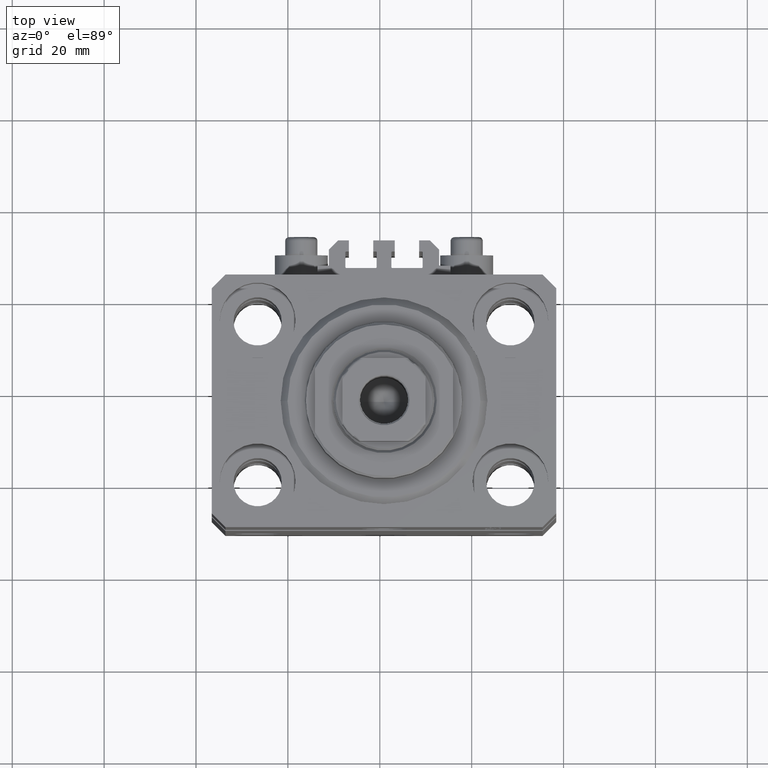
[diagram: clean part render]
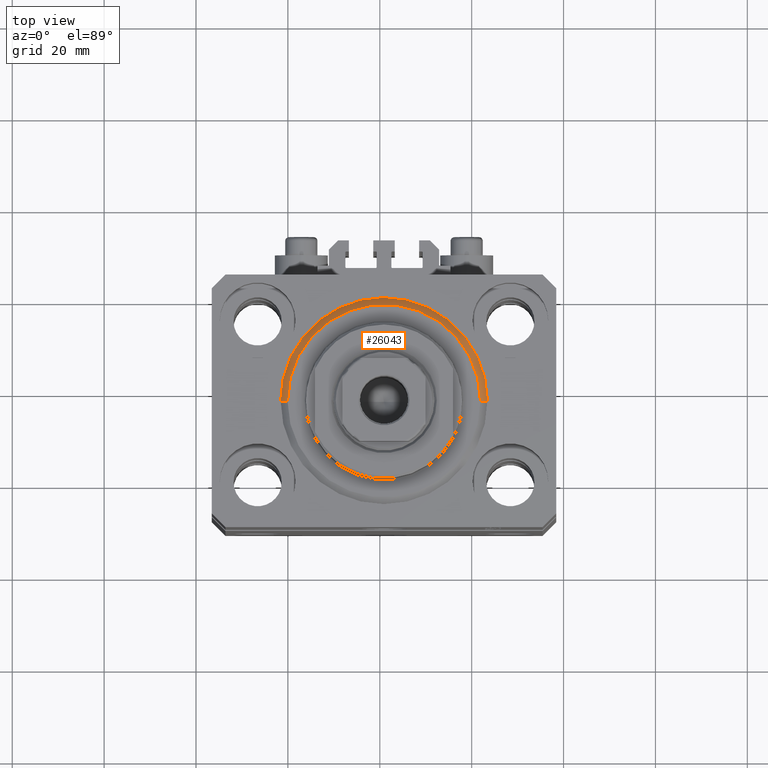
[diagram: same view with one face highlighted and labeled with its STEP entity id]
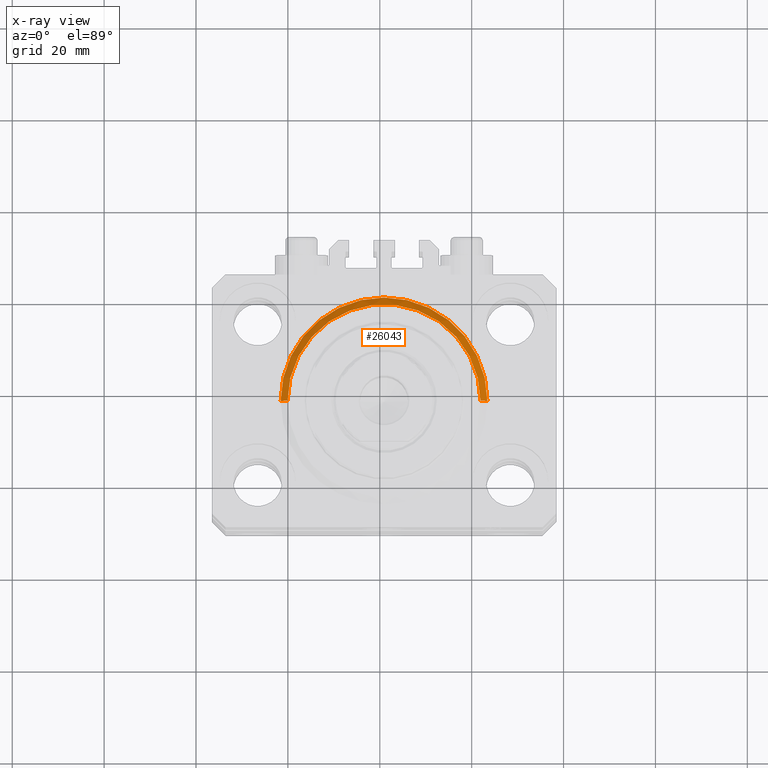
[diagram: x-ray of the same camera — body ghosted, the highlighted face saturated]
A machine part, top view. The second image highlights one B-rep face of the part: STEP entity #26043.
The next image is the same camera in x-ray: the body ghosted, the highlighted face saturated — about 0% of this face is hidden behind the body in this view.
In plain terms, the highlighted conical surface has half-angle 45 deg.
Its self-contained STEP definition (entity closure, byte-faithful):
#377 = DIRECTION ( 'NONE',  ( -0.000000000000000000, -0.000000000000000000, -1.000000000000000000 ) ) ;
#3825 = ORIENTED_EDGE ( 'NONE', *, *, #4888, .T. ) ;
#4888 = EDGE_CURVE ( 'NONE', #25903, #10345, #30527, .T. ) ;
#5650 = LINE ( 'NONE', #45155, #46354 ) ;
#6372 = CARTESIAN_POINT ( 'NONE',  ( -20.99999999999998934, 2.663606788145492628E-15, 0.000000000000000000 ) ) ;
#8212 = VERTEX_POINT ( 'NONE', #17563 ) ;
#10345 = VERTEX_POINT ( 'NONE', #27006 ) ;
#11857 = CARTESIAN_POINT ( 'NONE',  ( 0.000000000000000000, 0.000000000000000000, 0.000000000000000000 ) ) ;
#16315 = CARTESIAN_POINT ( 'NONE',  ( 0.000000000000000000, 0.000000000000000000, 1.500000000000001332 ) ) ;
#16874 = DIRECTION ( 'NONE',  ( -0.7071067811865500152, 8.659560562354963673E-17, 0.7071067811865451302 ) ) ;
#17230 = DIRECTION ( 'NONE',  ( 1.000000000000000000, 0.000000000000000000, 0.000000000000000000 ) ) ;
#17534 = CONICAL_SURFACE ( 'NONE', #47340, 22.50000000000000355, 0.7853981633974517207 ) ;
#17563 = CARTESIAN_POINT ( 'NONE',  ( 22.50000000000000355, 2.755455298081545172E-15, 1.500000000000001332 ) ) ;
#17698 = FACE_OUTER_BOUND ( 'NONE', #39667, .T. ) ;
#20027 = ORIENTED_EDGE ( 'NONE', *, *, #45485, .F. ) ;
#20100 = DIRECTION ( 'NONE',  ( -0.000000000000000000, -0.000000000000000000, 1.000000000000000000 ) ) ;
#21064 = DIRECTION ( 'NONE',  ( 1.000000000000000000, 0.000000000000000000, 0.000000000000000000 ) ) ;
#22409 = CIRCLE ( 'NONE', #36916, 20.99999999999998934 ) ;
#22446 = VECTOR ( 'NONE', #16874, 1000.000000000000114 ) ;
#25356 = CARTESIAN_POINT ( 'NONE',  ( 0.000000000000000000, 0.000000000000000000, 1.500000000000001332 ) ) ;
#25903 = VERTEX_POINT ( 'NONE', #6372 ) ;
#26043 = ADVANCED_FACE ( 'NONE', ( #17698 ), #17534, .T. ) ;
#27006 = CARTESIAN_POINT ( 'NONE',  ( -22.50000000000000355, 0.000000000000000000, 1.500000000000001332 ) ) ;
#30067 = DIRECTION ( 'NONE',  ( 1.000000000000000000, 0.000000000000000000, 0.000000000000000000 ) ) ;
#30527 = LINE ( 'NONE', #41506, #22446 ) ;
#30760 = CIRCLE ( 'NONE', #44530, 22.50000000000000355 ) ;
#31695 = CARTESIAN_POINT ( 'NONE',  ( 20.99999999999998934, 0.000000000000000000, 0.000000000000000000 ) ) ;
#32028 = ORIENTED_EDGE ( 'NONE', *, *, #34491, .F. ) ;
#32066 = DIRECTION ( 'NONE',  ( -0.000000000000000000, -0.000000000000000000, 1.000000000000000000 ) ) ;
#33991 = EDGE_CURVE ( 'NONE', #8212, #10345, #30760, .T. ) ;
#34491 = EDGE_CURVE ( 'NONE', #25903, #39692, #22409, .T. ) ;
#36916 = AXIS2_PLACEMENT_3D ( 'NONE', #11857, #377, #30067 ) ;
#38678 = DIRECTION ( 'NONE',  ( 0.7071067811865500152, 0.000000000000000000, 0.7071067811865451302 ) ) ;
#39667 = EDGE_LOOP ( 'NONE', ( #32028, #3825, #40059, #20027 ) ) ;
#39692 = VERTEX_POINT ( 'NONE', #31695 ) ;
#40059 = ORIENTED_EDGE ( 'NONE', *, *, #33991, .F. ) ;
#41506 = CARTESIAN_POINT ( 'NONE',  ( -22.50000000000000355, 2.755455298081545172E-15, 1.500000000000001332 ) ) ;
#44530 = AXIS2_PLACEMENT_3D ( 'NONE', #16315, #20100, #17230 ) ;
#45155 = CARTESIAN_POINT ( 'NONE',  ( 22.50000000000000355, 0.000000000000000000, 1.500000000000001332 ) ) ;
#45485 = EDGE_CURVE ( 'NONE', #39692, #8212, #5650, .T. ) ;
#46354 = VECTOR ( 'NONE', #38678, 1000.000000000000114 ) ;
#47340 = AXIS2_PLACEMENT_3D ( 'NONE', #25356, #32066, #21064 ) ;